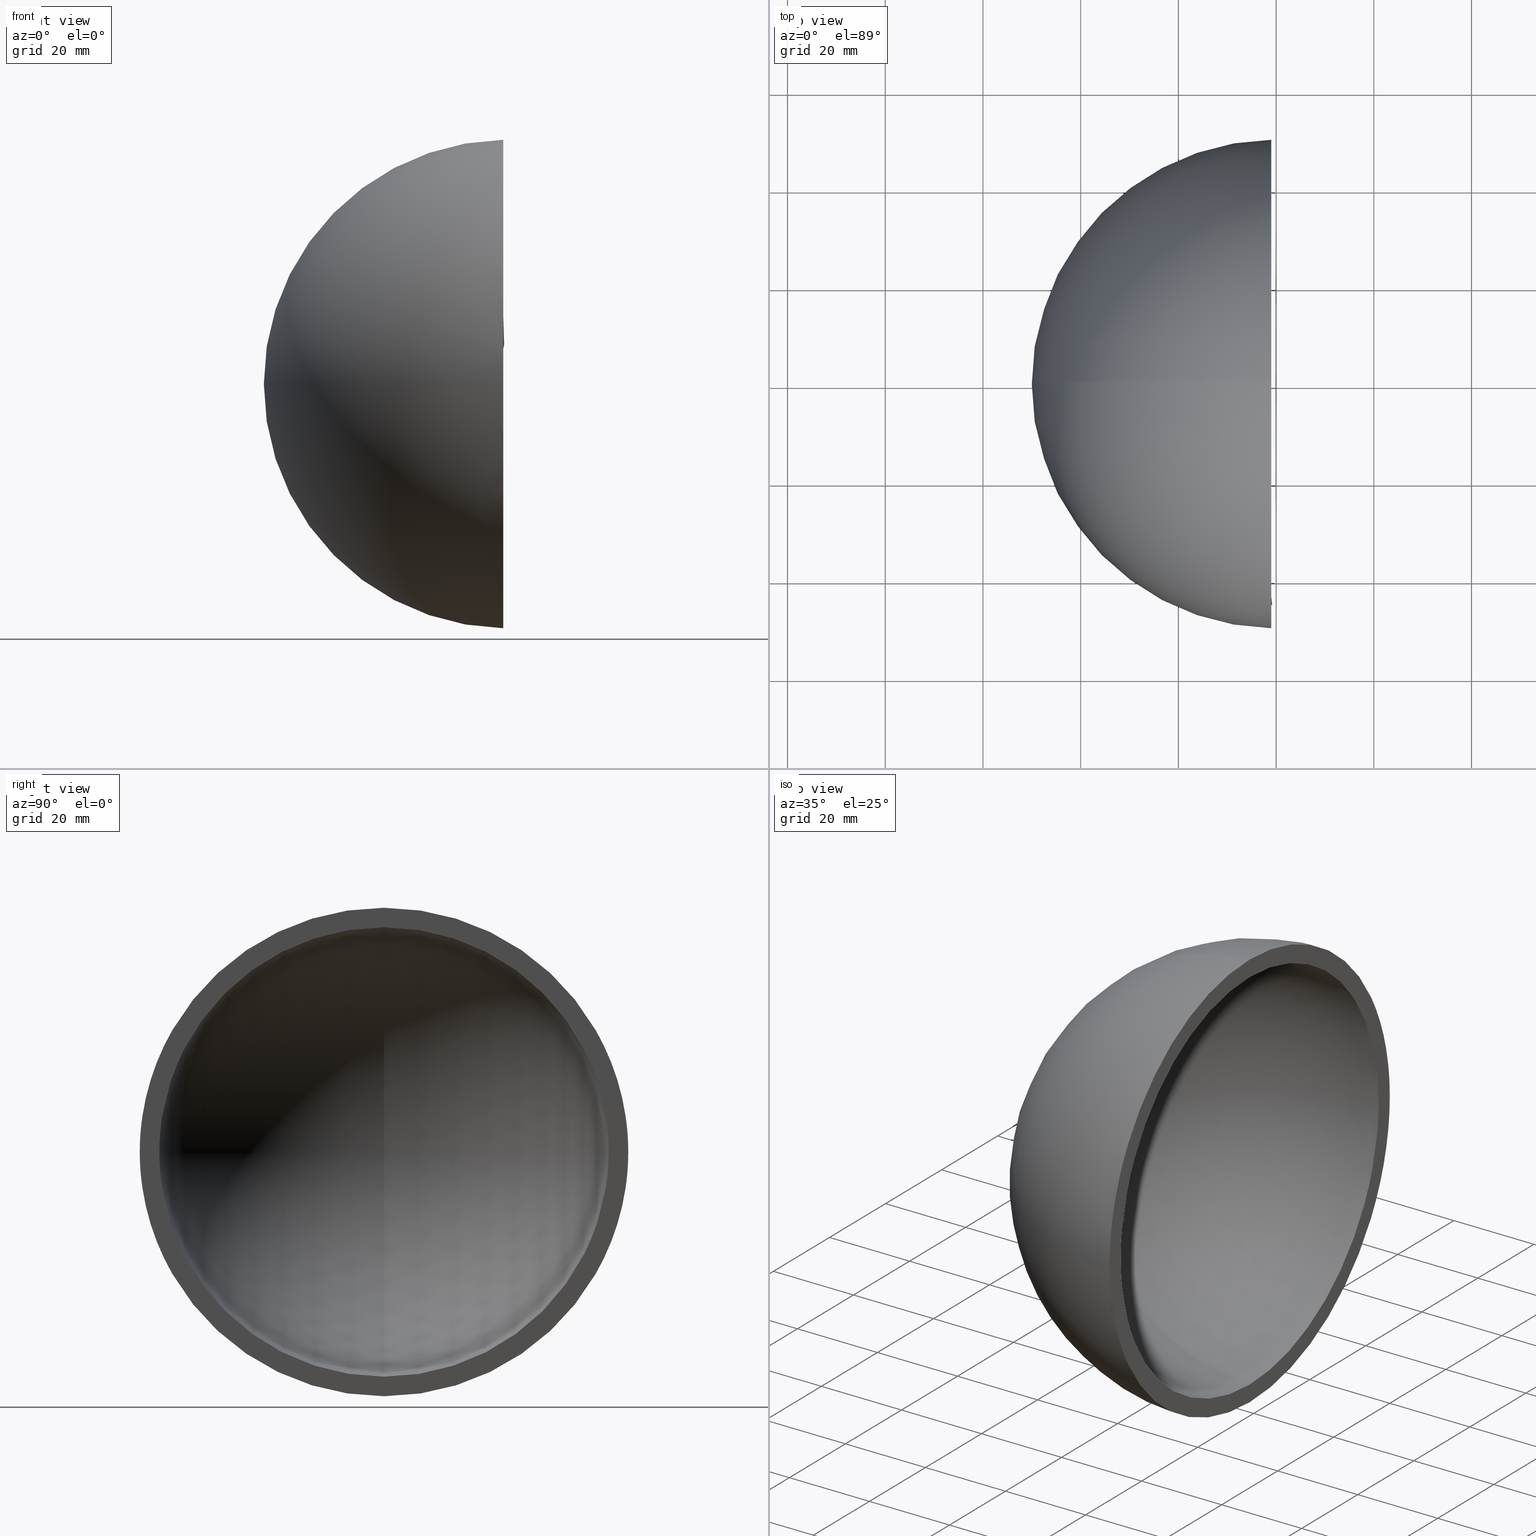
[diagram: canonical four-view strip — front | top / right | iso, engineering-drawing reading convention]
A machine part, canonical four-view strip (front | top / right | iso — engineering-drawing reading convention). The complete STEP part file that produces these views, byte-faithful:
ISO-10303-21;
HEADER;
FILE_DESCRIPTION (( 'STEP AP214' ),
    '1' );
FILE_NAME ('197538.STEP',
    '2019-07-23T02:45:42',
    ( 'user' ),
    ( '΢���й�' ),
    'SwSTEP 2.0',
    'SolidWorks 2016',
    '' );
FILE_SCHEMA (( 'AUTOMOTIVE_DESIGN' ));
ENDSEC;

DATA;
#1 = DIRECTION ( 'NONE',  ( 1.000000000000000000, 0.0000000000000000000, 0.0000000000000000000 ) ) ;
#2 = SPHERICAL_SURFACE ( 'NONE', #10, 46.00000000000000000 ) ;
#3 = ADVANCED_FACE ( 'NONE', ( #8, #83 ), #80, .F. ) ;
#4 = ORIENTED_EDGE ( 'NONE', *, *, #94, .T. ) ;
#5 = DIRECTION ( 'NONE',  ( 0.0000000000000000000, 1.000000000000000000, 0.0000000000000000000 ) ) ;
#6 = CARTESIAN_POINT ( 'NONE',  ( -0.9999999999999933400, -5.632043980944954400E-015, -45.98912915026767900 ) ) ;
#7 = UNCERTAINTY_MEASURE_WITH_UNIT (LENGTH_MEASURE( 1.000000000000000100E-005 ), #36, 'distance_accuracy_value', 'NONE');
#8 = FACE_BOUND ( 'NONE', #98, .T. ) ;
#9 = DIRECTION ( 'NONE',  ( 0.0000000000000000000, 0.0000000000000000000, 1.000000000000000000 ) ) ;
#10 = AXIS2_PLACEMENT_3D ( 'NONE', #45, #111, #140 ) ;
#11 = APPLICATION_CONTEXT ( 'automotive_design' ) ;
#12 = FILL_AREA_STYLE ('',( #117 ) ) ;
#13 =( NAMED_UNIT ( * ) PLANE_ANGLE_UNIT ( ) SI_UNIT ( $, .RADIAN. ) );
#14 = CARTESIAN_POINT ( 'NONE',  ( -0.9999999999999933400, 0.0000000000000000000, 45.98912915026767900 ) ) ;
#15 = CARTESIAN_POINT ( 'NONE',  ( 0.0000000000000000000, 0.0000000000000000000, 0.0000000000000000000 ) ) ;
#16 = DIRECTION ( 'NONE',  ( 0.0000000000000000000, 0.0000000000000000000, 1.000000000000000000 ) ) ;
#17 = CIRCLE ( 'NONE', #158, 46.00000000000000000 ) ;
#18 = APPLICATION_CONTEXT ( 'automotive_design' ) ;
#19 = ADVANCED_FACE ( 'NONE', ( #67 ), #155, .T. ) ;
#20 = EDGE_LOOP ( 'NONE', ( #154, #30 ) ) ;
#21 = AXIS2_PLACEMENT_3D ( 'NONE', #78, #62, #153 ) ;
#22 = AXIS2_PLACEMENT_3D ( 'NONE', #33, #99, #23 ) ;
#23 = DIRECTION ( 'NONE',  ( 0.0000000000000000000, 0.0000000000000000000, -1.000000000000000000 ) ) ;
#24 = APPLICATION_PROTOCOL_DEFINITION ( 'draft international standard', 'automotive_design', 1998, #11 ) ;
#25 =( NAMED_UNIT ( * ) SI_UNIT ( $, .STERADIAN. ) SOLID_ANGLE_UNIT ( ) );
#26 = SURFACE_STYLE_USAGE ( .BOTH. , #115 ) ;
#27 = PRODUCT_DEFINITION_FORMATION_WITH_SPECIFIED_SOURCE ( '�κ�', '', #81, .NOT_KNOWN. ) ;
#28 = VERTEX_POINT ( 'NONE', #14 ) ;
#29 = CIRCLE ( 'NONE', #124, 49.98999899979995100 ) ;
#30 = ORIENTED_EDGE ( 'NONE', *, *, #39, .T. ) ;
#31 = CIRCLE ( 'NONE', #57, 50.00000000000000000 ) ;
#32 = DIRECTION ( 'NONE',  ( 0.0000000000000000000, 0.0000000000000000000, 1.000000000000000000 ) ) ;
#33 = CARTESIAN_POINT ( 'NONE',  ( -0.9999999999999933400, 0.0000000000000000000, 0.0000000000000000000 ) ) ;
#34 = DIRECTION ( 'NONE',  ( 0.0000000000000000000, 0.0000000000000000000, 1.000000000000000000 ) ) ;
#35 =( GEOMETRIC_REPRESENTATION_CONTEXT ( 3 ) GLOBAL_UNCERTAINTY_ASSIGNED_CONTEXT ( ( #97 ) ) GLOBAL_UNIT_ASSIGNED_CONTEXT ( ( #102, #13, #25 ) ) REPRESENTATION_CONTEXT ( 'NONE', 'WORKASPACE' ) );
#36 =( LENGTH_UNIT ( ) NAMED_UNIT ( * ) SI_UNIT ( .MILLI., .METRE. ) );
#37 = DIRECTION ( 'NONE',  ( 0.0000000000000000000, 0.0000000000000000000, 1.000000000000000000 ) ) ;
#38 = SHAPE_DEFINITION_REPRESENTATION ( #145, #114 ) ;
#39 = EDGE_CURVE ( 'NONE', #50, #74, #142, .T. ) ;
#40 = CARTESIAN_POINT ( 'NONE',  ( -0.9999999999999922300, 0.0000000000000000000, 0.0000000000000000000 ) ) ;
#41 = PRODUCT_RELATED_PRODUCT_CATEGORY ( 'part', '', ( #81 ) ) ;
#42 = FACE_OUTER_BOUND ( 'NONE', #107, .T. ) ;
#43 = EDGE_CURVE ( 'NONE', #159, #28, #144, .T. ) ;
#44 =( NAMED_UNIT ( * ) SI_UNIT ( $, .STERADIAN. ) SOLID_ANGLE_UNIT ( ) );
#45 = CARTESIAN_POINT ( 'NONE',  ( 0.0000000000000000000, 0.0000000000000000000, 0.0000000000000000000 ) ) ;
#46 =( NAMED_UNIT ( * ) PLANE_ANGLE_UNIT ( ) SI_UNIT ( $, .RADIAN. ) );
#47 = DIRECTION ( 'NONE',  ( 0.0000000000000000000, -1.224646799147353200E-016, -1.000000000000000000 ) ) ;
#48 = DIRECTION ( 'NONE',  ( 0.0000000000000000000, 0.0000000000000000000, -1.000000000000000000 ) ) ;
#49 = CARTESIAN_POINT ( 'NONE',  ( 0.0000000000000000000, 0.0000000000000000000, 0.0000000000000000000 ) ) ;
#50 = VERTEX_POINT ( 'NONE', #116 ) ;
#51 = DIRECTION ( 'NONE',  ( 0.0000000000000000000, -1.000000000000000000, 0.0000000000000000000 ) ) ;
#52 = AXIS2_PLACEMENT_3D ( 'NONE', #133, #5, #32 ) ;
#53 = ORIENTED_EDGE ( 'NONE', *, *, #106, .F. ) ;
#54 = AXIS2_PLACEMENT_3D ( 'NONE', #40, #127, #48 ) ;
#55 = ORIENTED_EDGE ( 'NONE', *, *, #143, .F. ) ;
#56 = ADVANCED_FACE ( 'NONE', ( #100 ), #167, .F. ) ;
#57 = AXIS2_PLACEMENT_3D ( 'NONE', #49, #137, #47 ) ;
#58 = DIRECTION ( 'NONE',  ( 0.0000000000000000000, -1.000000000000000000, 1.224646799147353200E-016 ) ) ;
#59 = DIRECTION ( 'NONE',  ( 0.0000000000000000000, 1.000000000000000000, 0.0000000000000000000 ) ) ;
#60 = AXIS2_PLACEMENT_3D ( 'NONE', #92, #131, #1 ) ;
#61 =( NAMED_UNIT ( * ) PLANE_ANGLE_UNIT ( ) SI_UNIT ( $, .RADIAN. ) );
#62 = DIRECTION ( 'NONE',  ( 1.000000000000000000, -0.0000000000000000000, -0.0000000000000000000 ) ) ;
#63 = SURFACE_STYLE_USAGE ( .BOTH. , #166 ) ;
#64 = DIRECTION ( 'NONE',  ( -1.000000000000000000, 0.0000000000000000000, 0.0000000000000000000 ) ) ;
#65 = EDGE_CURVE ( 'NONE', #74, #50, #29, .T. ) ;
#66 = ORIENTED_EDGE ( 'NONE', *, *, #106, .T. ) ;
#67 = FACE_OUTER_BOUND ( 'NONE', #165, .T. ) ;
#68 = AXIS2_PLACEMENT_3D ( 'NONE', #15, #113, #110 ) ;
#69 = CIRCLE ( 'NONE', #22, 45.98912915026767900 ) ;
#70 = ORIENTED_EDGE ( 'NONE', *, *, #112, .F. ) ;
#71 = MANIFOLD_SOLID_BREP ( '��ת1', #96 ) ;
#72 = ADVANCED_FACE ( 'NONE', ( #42 ), #162, .T. ) ;
#73 = CARTESIAN_POINT ( 'NONE',  ( 0.0000000000000000000, 0.0000000000000000000, 0.0000000000000000000 ) ) ;
#74 = VERTEX_POINT ( 'NONE', #169 ) ;
#75 = CARTESIAN_POINT ( 'NONE',  ( -50.00000000000000000, 0.0000000000000000000, 3.061616997868383000E-015 ) ) ;
#76 = CARTESIAN_POINT ( 'NONE',  ( -0.9999999999999922300, 0.0000000000000000000, 0.0000000000000000000 ) ) ;
#77 = ORIENTED_EDGE ( 'NONE', *, *, #65, .F. ) ;
#78 = CARTESIAN_POINT ( 'NONE',  ( -0.9999999999999933400, 0.0000000000000000000, 0.0000000000000000000 ) ) ;
#79 = PRODUCT_CONTEXT ( 'NONE', #11, 'mechanical' ) ;
#80 = PLANE ( 'NONE',  #85 ) ;
#81 = PRODUCT ( '197538', '197538', '', ( #79 ) ) ;
#82 = VERTEX_POINT ( 'NONE', #75 ) ;
#83 = FACE_OUTER_BOUND ( 'NONE', #20, .T. ) ;
#84 = SURFACE_STYLE_FILL_AREA ( #12 ) ;
#85 = AXIS2_PLACEMENT_3D ( 'NONE', #103, #64, #37 ) ;
#86 = ORIENTED_EDGE ( 'NONE', *, *, #112, .T. ) ;
#87 = COLOUR_RGB ( '',1.000000000000000000, 1.000000000000000000, 1.000000000000000000 ) ;
#88 = CIRCLE ( 'NONE', #52, 50.00000000000000000 ) ;
#89 = FILL_AREA_STYLE ('',( #108 ) ) ;
#90 = STYLED_ITEM ( 'NONE', ( #120 ), #114 ) ;
#91 = ORIENTED_EDGE ( 'NONE', *, *, #43, .F. ) ;
#92 = CARTESIAN_POINT ( 'NONE',  ( 0.0000000000000000000, 0.0000000000000000000, 0.0000000000000000000 ) ) ;
#93 = CIRCLE ( 'NONE', #121, 46.00000000000000000 ) ;
#94 = EDGE_CURVE ( 'NONE', #28, #159, #69, .T. ) ;
#95 = MECHANICAL_DESIGN_GEOMETRIC_PRESENTATION_REPRESENTATION (  '', ( #90 ), #104 ) ;
#96 = CLOSED_SHELL ( 'NONE', ( #123, #19, #72, #3, #56 ) ) ;
#97 = UNCERTAINTY_MEASURE_WITH_UNIT (LENGTH_MEASURE( 1.000000000000000100E-005 ), #102, 'distance_accuracy_value', 'NONE');
#98 = EDGE_LOOP ( 'NONE', ( #122, #91 ) ) ;
#99 = DIRECTION ( 'NONE',  ( 1.000000000000000000, -0.0000000000000000000, -0.0000000000000000000 ) ) ;
#100 = FACE_OUTER_BOUND ( 'NONE', #109, .T. ) ;
#101 = DIRECTION ( 'NONE',  ( 0.0000000000000000000, 0.0000000000000000000, -1.000000000000000000 ) ) ;
#102 =( LENGTH_UNIT ( ) NAMED_UNIT ( * ) SI_UNIT ( .MILLI., .METRE. ) );
#103 = CARTESIAN_POINT ( 'NONE',  ( -0.9999999999999926700, 0.0000000000000000000, 45.98912915026767900 ) ) ;
#104 =( GEOMETRIC_REPRESENTATION_CONTEXT ( 3 ) GLOBAL_UNCERTAINTY_ASSIGNED_CONTEXT ( ( #7 ) ) GLOBAL_UNIT_ASSIGNED_CONTEXT ( ( #36, #61, #44 ) ) REPRESENTATION_CONTEXT ( 'NONE', 'WORKASPACE' ) );
#105 = ORIENTED_EDGE ( 'NONE', *, *, #146, .T. ) ;
#106 = EDGE_CURVE ( 'NONE', #82, #50, #31, .T. ) ;
#107 = EDGE_LOOP ( 'NONE', ( #53, #119, #149 ) ) ;
#108 = FILL_AREA_STYLE_COLOUR ( '', #160 ) ;
#109 = EDGE_LOOP ( 'NONE', ( #141, #86, #4 ) ) ;
#110 = DIRECTION ( 'NONE',  ( 0.0000000000000000000, 0.0000000000000000000, 1.000000000000000000 ) ) ;
#111 = DIRECTION ( 'NONE',  ( 0.0000000000000000000, -1.000000000000000000, 0.0000000000000000000 ) ) ;
#112 = EDGE_CURVE ( 'NONE', #172, #28, #93, .T. ) ;
#113 = DIRECTION ( 'NONE',  ( 0.0000000000000000000, -1.000000000000000000, 0.0000000000000000000 ) ) ;
#114 = ADVANCED_BREP_SHAPE_REPRESENTATION ( '197538', ( #71, #60 ), #163 ) ;
#115 = SURFACE_SIDE_STYLE ('',( #84 ) ) ;
#116 = CARTESIAN_POINT ( 'NONE',  ( -0.9999999999999922300, -6.122009226448439700E-015, -49.98999899979994400 ) ) ;
#117 = FILL_AREA_STYLE_COLOUR ( '', #87 ) ;
#118 = AXIS2_PLACEMENT_3D ( 'NONE', #138, #51, #16 ) ;
#119 = ORIENTED_EDGE ( 'NONE', *, *, #143, .T. ) ;
#120 = PRESENTATION_STYLE_ASSIGNMENT (( #63 ) ) ;
#121 = AXIS2_PLACEMENT_3D ( 'NONE', #171, #59, #34 ) ;
#122 = ORIENTED_EDGE ( 'NONE', *, *, #94, .F. ) ;
#123 = ADVANCED_FACE ( 'NONE', ( #156 ), #2, .F. ) ;
#124 = AXIS2_PLACEMENT_3D ( 'NONE', #76, #152, #101 ) ;
#125 = DIRECTION ( 'NONE',  ( 0.0000000000000000000, -1.000000000000000000, 0.0000000000000000000 ) ) ;
#126 =( NAMED_UNIT ( * ) SI_UNIT ( $, .STERADIAN. ) SOLID_ANGLE_UNIT ( ) );
#127 = DIRECTION ( 'NONE',  ( 1.000000000000000000, -0.0000000000000000000, -0.0000000000000000000 ) ) ;
#128 = PRESENTATION_LAYER_ASSIGNMENT (  '', '', ( #90 ) ) ;
#129 = ORIENTED_EDGE ( 'NONE', *, *, #43, .T. ) ;
#130 = PRESENTATION_LAYER_ASSIGNMENT (  '', '', ( #139 ) ) ;
#131 = DIRECTION ( 'NONE',  ( 0.0000000000000000000, 0.0000000000000000000, 1.000000000000000000 ) ) ;
#132 = PRODUCT_DEFINITION ( 'δ֪', '', #27, #157 ) ;
#133 = CARTESIAN_POINT ( 'NONE',  ( 0.0000000000000000000, 0.0000000000000000000, 0.0000000000000000000 ) ) ;
#134 = DIRECTION ( 'NONE',  ( 0.0000000000000000000, -1.224646799147353200E-016, -1.000000000000000000 ) ) ;
#135 = EDGE_LOOP ( 'NONE', ( #70, #105, #129 ) ) ;
#136 =( LENGTH_UNIT ( ) NAMED_UNIT ( * ) SI_UNIT ( .MILLI., .METRE. ) );
#137 = DIRECTION ( 'NONE',  ( 0.0000000000000000000, -1.000000000000000000, 1.224646799147353200E-016 ) ) ;
#138 = CARTESIAN_POINT ( 'NONE',  ( 0.0000000000000000000, 0.0000000000000000000, 0.0000000000000000000 ) ) ;
#139 = STYLED_ITEM ( 'NONE', ( #150 ), #71 ) ;
#140 = DIRECTION ( 'NONE',  ( 0.0000000000000000000, 0.0000000000000000000, 1.000000000000000000 ) ) ;
#141 = ORIENTED_EDGE ( 'NONE', *, *, #146, .F. ) ;
#142 = CIRCLE ( 'NONE', #54, 49.98999899979995100 ) ;
#143 = EDGE_CURVE ( 'NONE', #82, #74, #88, .T. ) ;
#144 = CIRCLE ( 'NONE', #21, 45.98912915026767900 ) ;
#145 = PRODUCT_DEFINITION_SHAPE ( 'NONE', 'NONE',  #132 ) ;
#146 = EDGE_CURVE ( 'NONE', #172, #159, #17, .T. ) ;
#147 = MECHANICAL_DESIGN_GEOMETRIC_PRESENTATION_REPRESENTATION (  '', ( #139 ), #35 ) ;
#148 = APPLICATION_PROTOCOL_DEFINITION ( 'draft international standard', 'automotive_design', 1998, #18 ) ;
#149 = ORIENTED_EDGE ( 'NONE', *, *, #39, .F. ) ;
#150 = PRESENTATION_STYLE_ASSIGNMENT (( #26 ) ) ;
#151 = SURFACE_STYLE_FILL_AREA ( #89 ) ;
#152 = DIRECTION ( 'NONE',  ( 1.000000000000000000, -0.0000000000000000000, -0.0000000000000000000 ) ) ;
#153 = DIRECTION ( 'NONE',  ( 0.0000000000000000000, 0.0000000000000000000, -1.000000000000000000 ) ) ;
#154 = ORIENTED_EDGE ( 'NONE', *, *, #65, .T. ) ;
#155 = SPHERICAL_SURFACE ( 'NONE', #68, 50.00000000000000000 ) ;
#156 = FACE_OUTER_BOUND ( 'NONE', #135, .T. ) ;
#157 = PRODUCT_DEFINITION_CONTEXT ( 'detailed design', #18, 'design' ) ;
#158 = AXIS2_PLACEMENT_3D ( 'NONE', #73, #58, #134 ) ;
#159 = VERTEX_POINT ( 'NONE', #6 ) ;
#160 = COLOUR_RGB ( '',1.000000000000000000, 1.000000000000000000, 1.000000000000000000 ) ;
#161 = UNCERTAINTY_MEASURE_WITH_UNIT (LENGTH_MEASURE( 1.000000000000000100E-005 ), #136, 'distance_accuracy_value', 'NONE');
#162 = SPHERICAL_SURFACE ( 'NONE', #170, 50.00000000000000000 ) ;
#163 =( GEOMETRIC_REPRESENTATION_CONTEXT ( 3 ) GLOBAL_UNCERTAINTY_ASSIGNED_CONTEXT ( ( #161 ) ) GLOBAL_UNIT_ASSIGNED_CONTEXT ( ( #136, #46, #126 ) ) REPRESENTATION_CONTEXT ( 'NONE', 'WORKASPACE' ) );
#164 = CARTESIAN_POINT ( 'NONE',  ( -46.00000000000000000, 0.0000000000000000000, 2.816687638038912400E-015 ) ) ;
#165 = EDGE_LOOP ( 'NONE', ( #55, #66, #77 ) ) ;
#166 = SURFACE_SIDE_STYLE ('',( #151 ) ) ;
#167 = SPHERICAL_SURFACE ( 'NONE', #118, 46.00000000000000000 ) ;
#168 = CARTESIAN_POINT ( 'NONE',  ( 0.0000000000000000000, 0.0000000000000000000, 0.0000000000000000000 ) ) ;
#169 = CARTESIAN_POINT ( 'NONE',  ( -0.9999999999999922300, 0.0000000000000000000, 49.98999899979994400 ) ) ;
#170 = AXIS2_PLACEMENT_3D ( 'NONE', #168, #125, #9 ) ;
#171 = CARTESIAN_POINT ( 'NONE',  ( 0.0000000000000000000, 0.0000000000000000000, 0.0000000000000000000 ) ) ;
#172 = VERTEX_POINT ( 'NONE', #164 ) ;
ENDSEC;
END-ISO-10303-21;
